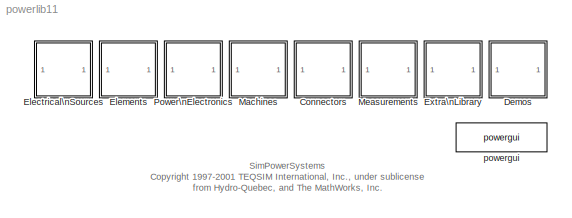
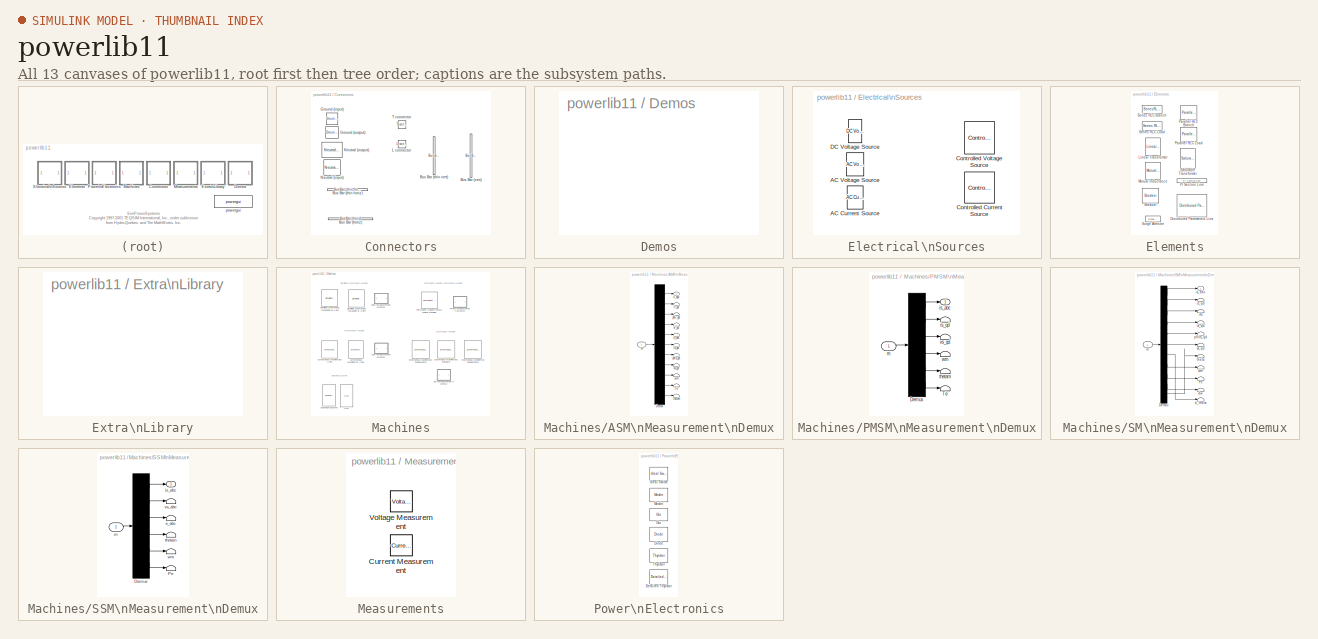
[diagram: thumbnail index - all 13 canvases of the model, root first then tree order]
MODEL powerlib11
KIND library
BLOCK [SubSystem] Connectors
  MaskDisplay = plot(0,0,100,100,[80,40],[40,40],[70,51],[31,31],[64,57],[23,23],[5,60,60],[70,70,40],[32,32],[70,97],[31,32,34,29,29,34,34,29,34,29],[71,68,71,71,70,68,71,68,68,71])
  MaskIconFrame = on
  MaskIconOpaque = on
  MaskIconRotate = none
  MaskIconUnits = autoscale
  MinAlgLoopOccurrences = off
  Ports = []
  RTWSystemCode = Auto
  TreatAsAtomicUnit = off
BLOCK [Reference] Connectors/Bus Bar (horiz)  REF=powerlib2/Connectors/Bus Bar (horiz)
  PSBOutputType = 1111111111111111111111111111111111111111111111111111111111111111111111111
  Ports = [2, 1]
  SourceBlock = powerlib2/Connectors/Bus Bar (horiz)
  SourceType = Bus Bar
  Tag = PoWeRsYsTeMbLoCk
  entrees = 2
  sorties = 1
BLOCK [Reference] Connectors/Bus Bar (thin horiz)  REF=powerlib2/Connectors/Bus Bar (thin horiz)
  PSBOutputType = 111111111111111111111111111111111111111111111111111111111111111111111111111111111111
  Ports = [2, 1]
  SourceBlock = powerlib2/Connectors/Bus Bar (thin horiz)
  SourceType = Bus Bar
  Tag = PoWeRsYsTeMbLoCk
  input = 2
  output = 1
BLOCK [Reference] Connectors/Bus Bar (thin vert)  REF=powerlib2/Connectors/Bus Bar (thin vert)
  PSBOutputType = 111111111111111111111111111111111111111111111111111111111111111111111111111111111111
  Ports = [2, 1]
  SourceBlock = powerlib2/Connectors/Bus Bar (thin vert)
  SourceType = Bus Bar
  Tag = PoWeRsYsTeMbLoCk
  input = 2
  output = 1
BLOCK [Reference] Connectors/Bus Bar (vert)  REF=powerlib2/Connectors/Bus Bar (vert)
  PSBOutputType = 11111111111111111111111111111111111111111111111111111111111111111111111111111111111111111
  Ports = [3, 2]
  SourceBlock = powerlib2/Connectors/Bus Bar (vert)
  SourceType = Bus Bar
  Tag = PoWeRsYsTeMbLoCk
  entrees = 3
  sorties = 2
BLOCK [Reference] Connectors/Ground (input)  REF=powerlib2/Connectors/Ground (input)
  Ports = [1]
  SourceBlock = powerlib2/Connectors/Ground (input)
  SourceType = Ground
  Tag = PoWeRsYsTeMbLoCk
BLOCK [Reference] Connectors/Ground (output)  REF=powerlib2/Connectors/Ground (output)
  PSBOutputType = 1
  Ports = [0, 1]
  SourceBlock = powerlib2/Connectors/Ground (output)
  SourceType = Ground
  Tag = PoWeRsYsTeMbLoCk
BLOCK [Reference] Connectors/L connector  REF=powerlib2/Connectors/L connector
  Ports = [1, 0, 1]
  SourceBlock = powerlib2/Connectors/L connector
  SourceType = Bus Bar
  Tag = PoWeRsYsTeMbLoCk
BLOCK [Reference] Connectors/Neutral (input)  REF=powerlib2/Connectors/Neutral (input)
  Ports = [1]
  SourceBlock = powerlib2/Connectors/Neutral (input)
  SourceType = Neutral
  Tag = PoWeRsYsTeMbLoCk
  no = 99
BLOCK [Reference] Connectors/Neutral (output)  REF=powerlib2/Connectors/Neutral (output)
  PSBOutputType = 1
  Ports = [0, 1]
  SourceBlock = powerlib2/Connectors/Neutral (output)
  SourceType = Neutral
  Tag = PoWeRsYsTeMbLoCk
  no = 99
BLOCK [Reference] Connectors/T connector  REF=powerlib2/Connectors/T connector
  PSBOutputType = 1
  Ports = [1, 1, 1]
  SourceBlock = powerlib2/Connectors/T connector
  SourceType = Bus Bar
  Tag = PoWeRsYsTeMbLoCk
BLOCK [SubSystem] Demos
  MaskDisplay = disp('Demos')
  MaskIconFrame = on
  MaskIconOpaque = on
  MaskIconRotate = none
  MaskIconUnits = autoscale
  MinAlgLoopOccurrences = off
  OpenFcn = demo('simulink','SimPowerSystems')
  Ports = []
  RTWSystemCode = Auto
  TreatAsAtomicUnit = off
BLOCK [SubSystem] Electrical\nSources
  MaskDisplay = plot(-15,-15,15,15,[0 0 5 -5],[10 1.25 1.25 1.25],[0 0 -2 2],[-10 -1.25 -1.25 -1.25],[6 4 5 5 5]-10,[3 3 3 4 2]+3)
  MaskIconFrame = on
  MaskIconOpaque = on
  MaskIconRotate = port
  MaskIconUnits = autoscale
  MinAlgLoopOccurrences = off
  Ports = []
  RTWSystemCode = Auto
  TreatAsAtomicUnit = off
BLOCK [Reference] Electrical\nSources/AC Current Source  REF=powerlib2/Electrical\nSources/AC Current Source
  A = 10
  Description = source block
  F = 60
  P = 0
  PSBOutputType = 1
  Ports = [1, 1]
  SourceBlock = powerlib2/Electrical\nSources/AC Current Source
  SourceType = AC Current Source
  Tag = PoWeRsYsTeMbLoCk
  mesure = None
  stime = 0
BLOCK [Reference] Electrical\nSources/AC Voltage Source  REF=powerlib2/Electrical\nSources/AC Voltage Source
  A = 100
  Description = source block
  F = 60
  P = 0
  PSBOutputType = 1
  Ports = [1, 1]
  SourceBlock = powerlib2/Electrical\nSources/AC Voltage Source
  SourceType = AC Voltage Source
  Tag = PoWeRsYsTeMbLoCk
  mesure = None
  stime = 0
BLOCK [Reference] Electrical\nSources/Controlled Current Source  REF=powerlib2/Electrical\nSources/Controlled Current Source
  Description = source block
  PSBOutputType = 11
  Ports = [1, 2]
  SourceBlock = powerlib2/Electrical\nSources/Controlled Current Source
  SourceType = Controlled Current Source
  Tag = PoWeRsYsTeMbLoCk
  freq = 0
  ia = 10
  initsrc = on
  iph = 0
  mesure = None
  srctyp = AC
BLOCK [Reference] Electrical\nSources/Controlled Voltage Source  REF=powerlib2/Electrical\nSources/Controlled Voltage Source
  Description = source block
  PSBOutputType = 11
  Ports = [1, 2]
  SourceBlock = powerlib2/Electrical\nSources/Controlled Voltage Source
  SourceType = Controlled Voltage Source
  Tag = PoWeRsYsTeMbLoCk
  ifreq = 0
  initsrc = on
  iph = 0
  iv = 100
  mesure = None
  srctyp = AC
BLOCK [Reference] Electrical\nSources/DC Voltage Source  REF=powerlib2/Electrical\nSources/DC Voltage Source
  Description = source block
  PSBOutputType = 1
  Ports = [1, 1]
  SourceBlock = powerlib2/Electrical\nSources/DC Voltage Source
  SourceType = DC Voltage Source
  Tag = PoWeRsYsTeMbLoCk
  V = 100
  mesure = None
BLOCK [SubSystem] Elements
  MaskDisplay = plot(0,0,100,100,[90,64,77,77,60,56,51,46,40,34,30,25,13],[57,57,57,80,80,65,94,65,94,65,94,80,80],[90,87,82,77,74,68,64],[43,46,48,48,48,46,43],[48,77,77],[20,20,48],[39,27,13],[36,20,20])
  MaskIconFrame = on
  MaskIconOpaque = on
  MaskIconRotate = none
  MaskIconUnits = autoscale
  MinAlgLoopOccurrences = off
  Ports = []
  RTWSystemCode = Auto
  TreatAsAtomicUnit = off
BLOCK [Reference] Elements/Breaker  REF=powerlib2/Elements/Breaker
  PSBOutputType = 1
  Ports = [2, 1]
  SourceBlock = powerlib2/Elements/Breaker
  SourceType = Breaker
  Tag = PoWeRsYsTeMbLoCk
  Ts = 0
  a = 0.01
  c = 0
  comext = on
  cs = 0
  mesure = None
  rs = inf
  times = [ 4/60  5/60 ]
BLOCK [Reference] Elements/Distributed Parameters Line  REF=powerlib2/Elements/Distributed Parameters Line
  PSBOutputType = 111111111111111111111111111111
  Ports = [3, 3]
  SourceBlock = powerlib2/Elements/Distributed Parameters Line
  SourceType = Distributed Parameters Line
  Tag = PoWeRsYsTeMbLoCk
  c = [12.74e-9 7.751e-9]
  f = 60
  l = [0.9337e-3  4.1264e-3]
  lgt = 300
  mesure = None
  n = 3
  r = [0.01273 0.3864]
  x1 = [0 0 0 0; 0.0001244 0 0 0; 0.0002488 0 0 0; 0.0003733 0 0 0; 0.0004977 0 0 0; 0.0006221 0 0 0]
  x2 = [0 0 0 0; 0.0001244 0 0 0; 0.0002488 0 0 0; 0.0003733 0 0 0; 0.0004977 0 0 0; 0.0006221 0 0 0]
  x3 = [0 0 0 0; 0.0001244 0 0 0; 0.0002488 0 0 0; 0.0003733 0 0 0; 0.0004977 0 0 0; 0.0006221 0 0 0]
  x4 = [0 0 0 0; 0.0001244 0 0 0; 0.0002488 0 0 0; 0.0003733 0 0 0; 0.0004977 0 0 0; 0.0006221 0 0 0]
  x5 = 0
BLOCK [Reference] Elements/Linear Transformer  REF=powerlib2/Elements/Linear Transformer
  PSBOutputType = 1111
  Ports = [2, 4]
  SourceBlock = powerlib2/Elements/Linear Transformer
  SourceType = Linear Transformer
  Tag = PoWeRsYsTeMbLoCk
  a = [250e6 60]
  b = [735e3/sqrt(3) 0.002 0.08]
  c = [315e3/sqrt(3) 0.002 0.08]
  d = [60e3 0.005 0.02]
  e = [500 500]
  mesure = None
BLOCK [Reference] Elements/Mutual Inductance  REF=powerlib2/Elements/Mutual Inductance
  PSBOutputType = 111
  Ports = [3, 3]
  SourceBlock = powerlib2/Elements/Mutual Inductance
  SourceType = Mutual Inductance
  Tag = PoWeRsYsTeMbLoCk
  a = [1.1 1.1e-03]
  b = [ 1.1 1.1e-03]
  c = [ 1.1 1.1e-03]
  d = [1.0 1.0e-03]
  mesure = None
BLOCK [Reference] Elements/PI Section Line  REF=powerlib2/Elements/PI Section Line
  PSBOutputType = 1
  Ports = [1, 1]
  SourceBlock = powerlib2/Elements/PI Section Line
  SourceType = Pi Section Line
  Tag = PoWeRsYsTeMbLoCk
  a = 0.2568
  b = 2e-03
  c = 8.6e-09
  d = 100
  e = 1
  f = 60
  mesure = None
BLOCK [Reference] Elements/Parallel RLC Branch  REF=powerlib2/Elements/Parallel RLC Branch
  PSBOutputType = 1
  Ports = [1, 1]
  SourceBlock = powerlib2/Elements/Parallel RLC Branch
  SourceType = Parallel RLC Branch
  Tag = PoWeRsYsTeMbLoCk
  a = 1
  b = 1e-03
  c = 1e-06
  mesure = None
BLOCK [Reference] Elements/Parallel RLC Load  REF=powerlib2/Elements/Parallel RLC Load
  PSBOutputType = 1
  Ports = [1, 1]
  SourceBlock = powerlib2/Elements/Parallel RLC Load
  SourceType = Parallel RLC Load
  Tag = PoWeRsYsTeMbLoCk
  a = 1000
  b = 60
  c = 10e3
  d = 100
  e = 100
  mesure = None
BLOCK [Reference] Elements/Saturable Transformer  REF=powerlib2/Elements/Saturable Transformer
  H = off
  Initialslope = +1
  PSBOutputType = 1111
  Ports = [2, 4]
  SourceBlock = powerlib2/Elements/Saturable Transformer
  SourceType = Saturable Transformer
  Tag = PoWeRsYsTeMbLoCk
  a = [250e6 60]
  b = [735e3/sqrt(3) 0.002 0.08]
  c = [315e3/sqrt(3) 0.002 0.08]
  d = [315e3/sqrt(3) 0.002 0.08]
  e = [0 0 ; 0.001 1.2 ; 1 1.3]
  f = [500]
  matfile = 'hystXfo1'
  mesure = None
BLOCK [Reference] Elements/Series RLC Branch  REF=powerlib2/Elements/Series RLC Branch
  PSBOutputType = 1
  Ports = [1, 1]
  SourceBlock = powerlib2/Elements/Series RLC Branch
  SourceType = Series RLC Branch
  Tag = PoWeRsYsTeMbLoCk
  a = 1
  b = 1e-03
  c = 1e-06
  mesure = None
BLOCK [Reference] Elements/Series RLC Load  REF=powerlib2/Elements/Series RLC Load
  PSBOutputType = 1
  Ports = [1, 1]
  SourceBlock = powerlib2/Elements/Series RLC Load
  SourceType = Series RLC Load
  Tag = PoWeRsYsTeMbLoCk
  a = 1000
  b = 60
  c = 10e3
  d = 100
  e = 100
  mesure = None
BLOCK [Reference] Elements/Surge Arrester  REF=powerlib2/Elements/Surge Arrester
  PSBOutputType = 1
  Ports = [1, 1]
  SourceBlock = powerlib2/Elements/Surge Arrester
  SourceType = Surge Arrester
  Tag = PoWeRsYsTeMbLoCk
  mesure = None
  x1 = 500e+03
  x2 = 2
  x3 = 500
  x4 = [.955 50]
  x5 = [1.0 25]
  x6 = [.9915 16.5]
BLOCK [SubSystem] Extra\nLibrary
  MaskDisplay = disp('Extras')
  MaskIconFrame = on
  MaskIconOpaque = on
  MaskIconRotate = none
  MaskIconUnits = autoscale
  MinAlgLoopOccurrences = off
  OpenFcn = powerlib_extras
  Ports = []
  RTWSystemCode = Auto
  TreatAsAtomicUnit = off
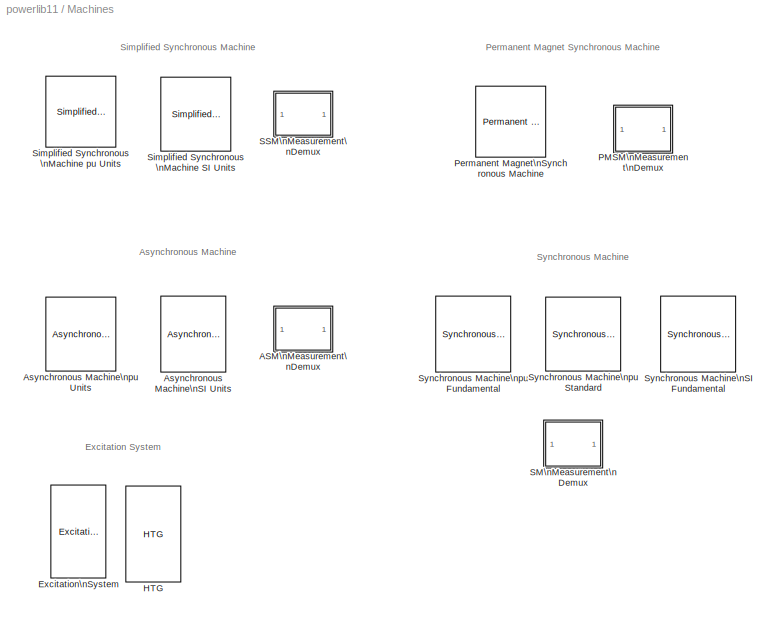
BLOCK [SubSystem] Machines
  MaskDisplay = plot(-40,-40,40,40,[0,9,18,24,29,30,29,24,18,9,0,-9,-18,-24,-29,-30,-29,-24,-18,-9,0],[30,29,24,18,9,0,-9,-18,-24,-29,-30,-29,-24,-18,-9,0,9,18,24,29,30],[0,-9,-18,-24,-16,-16,-24,-18,-9,0,9,18,24,16,16,24,18,9,0]*.8,[-30,-29,-24,-18,-18,18,18,24,29,30,29,24,18,18,-18,-18,-24,-29,-30]*.8)
  MaskIconFrame = on
  MaskIconOpaque = on
  MaskIconRotate = none
  MaskIconUnits = autoscale
  MinAlgLoopOccurrences = off
  Ports = []
  RTWSystemCode = Auto
  TreatAsAtomicUnit = off
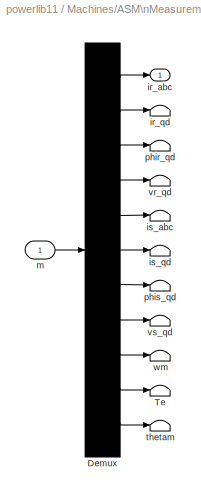
BLOCK [SubSystem] Machines/ASM\nMeasurement\nDemux
  MaskCallbackString = ||||||||||
  MaskDescription = Split specified signals of Asynchronous Machine measurement output vector into separate signals. All electrical rotor quantities are referred to the stator.
  MaskEnableString = on,on,on,on,on,on,on,on,on,on,on
  MaskIconFrame = on
  MaskIconOpaque = on
  MaskIconRotate = none
  MaskIconUnits = autoscale
  MaskInitialization = bloc=gcb;\nif strcmp(bdroot,'powerlib');return;end;\nnames={'ir_abc','ir_qd','phir_qd','vr_qd','is_abc','is_qd','phis_qd','vs_qd','wm','Te','thetam'};\netats={a,b,c,d,e,f,g,h,i,j,k};\nOutNo = 0;\nfor i=1:11\n   if etats{i}==0\n      status='Terminator';\n   else\n      status='Outport';\n	  OutNo = OutNo+1;\n   end\n   actuel=get_param([bloc,'/',names{i}],'BlockType');\n   if strcmp(actuel,status)...<+187ch>
  MaskPromptString = ir_abc       : Rotor currents ira, irb, irc (A) or (pu)|ir_qd         : q and d axis rotor currents (A) or (pu)|phir_qd    : q and d axis rotor fluxes (Wb) or (pu)|vr_qd        : q and d axis rotor voltages (V) or (pu)|is_abc      : Stator currents ia, ib, ic (A) or (pu)|is_qd        : q and d axis stator currents (A) or (pu)|phis_qd   : q and d axis stator fluxes (Wb) or (pu)|vs_qd       : q and ...<+165ch>
  MaskSelfModifiable = on
  MaskStyleString = checkbox,checkbox,checkbox,checkbox,checkbox,checkbox,checkbox,checkbox,checkbox,checkbox,checkbox
  MaskTabNameString = ,,,,,,,,,,
  MaskToolTipString = on,on,on,on,on,on,on,on,on,on,on
  MaskTunableValueString = on,on,on,on,on,on,on,on,on,on,on
  MaskType = Asynchronous Machine measurements
  MaskValueString = on|off|off|off|off|off|off|off|off|off|off
  MaskVarAliasString = ,,,,,,,,,,
  MaskVariables = a=@1;b=@2;c=@3;d=@4;e=@5;f=@6;g=@7;h=@8;i=@9;j=@10;k=@11;
  MaskVisibilityString = on,on,on,on,on,on,on,on,on,on,on
  MinAlgLoopOccurrences = off
  Ports = [1, 1]
  RTWSystemCode = Auto
  TreatAsAtomicUnit = off
BLOCK [Demux] Machines/ASM\nMeasurement\nDemux/Demux
  Outputs = [3,2,2,2,3,2,2,2,1,1,1]
  Ports = [1, 11]
BLOCK [Terminator] Machines/ASM\nMeasurement\nDemux/Te
BLOCK [Outport] Machines/ASM\nMeasurement\nDemux/ir_abc
  IconDisplay = Port number
BLOCK [Terminator] Machines/ASM\nMeasurement\nDemux/ir_qd
BLOCK [Terminator] Machines/ASM\nMeasurement\nDemux/is_abc
BLOCK [Terminator] Machines/ASM\nMeasurement\nDemux/is_qd
BLOCK [Inport] Machines/ASM\nMeasurement\nDemux/m
  IconDisplay = Port number
  LatchInput = off
  Port = 1
BLOCK [Terminator] Machines/ASM\nMeasurement\nDemux/phir_qd
BLOCK [Terminator] Machines/ASM\nMeasurement\nDemux/phis_qd
BLOCK [Terminator] Machines/ASM\nMeasurement\nDemux/thetam
BLOCK [Terminator] Machines/ASM\nMeasurement\nDemux/vr_qd
BLOCK [Terminator] Machines/ASM\nMeasurement\nDemux/vs_qd
BLOCK [Terminator] Machines/ASM\nMeasurement\nDemux/wm
BLOCK [Reference] Machines/Asynchronous Machine\nSI Units  REF=powerlib2/Machines/Asynchronous Machine\nSI Units
  PSBOutputType = 1110
  Ports = [4, 4]
  SourceBlock = powerlib2/Machines/Asynchronous Machine\nSI Units
  SourceType = Asynchronous Machine
  Tag = PoWeRsYsTeMbLoCk
  ctrl = Rotor
  iounits = 1
  rotType = Wound
  x1 = [ 3*746, 220, 60 ]
  x2 = [ 0.435  2.0e-3 ]
  x3 = [ 0.816  2.0e-3 ]
  x4 = 69.31e-3
  x5 = [ 0.089  0  2 ]
  x6 = [ 1,0   0,0,0   0,0,0 ]
BLOCK [Reference] Machines/Asynchronous Machine\npu Units  REF=powerlib2/Machines/Asynchronous Machine\npu Units
  PSBOutputType = 1110
  Ports = [4, 4]
  SourceBlock = powerlib2/Machines/Asynchronous Machine\npu Units
  SourceType = Asynchronous Machine
  Tag = PoWeRsYsTeMbLoCk
  ctrl = Rotor
  iounits = 0
  rotType = Wound
  x1 = [ 3*746, 220, 60 ]
  x2 = [ 0.0201,0.0349 ]
  x3 = [ 0.0377,0.0349 ]
  x4 = 1.2082
  x5 = [ 0.7065,0,2 ]
  x6 = [ 1,0   0,0,0   0,0,0 ]
BLOCK [Reference] Machines/Excitation\nSystem  REF=powerlib2/Machines/Excitation\nSystem
  Ports = [4, 1]
  SourceBlock = powerlib2/Machines/Excitation\nSystem
  SourceType = Excitation System
  damp = [ 0.001, 0.1 ]
  exc = [ 1, 0 ]
  lim = [ -11.5, 11.5, 0 ]
  reg = [ 300, 0.001 ]
  sat = [ 0, 0 ]
  tgr = [ 0, 0 ]
  tr = 20e-3
  v0 = [1.0  1.28]
BLOCK [Reference] Machines/HTG  REF=powerlib2/Machines/HTG
  Ports = [5, 2]
  SourceBlock = powerlib2/Machines/HTG
  SourceType = Hydraulic Turbine and Governor
  dref = 0
  gate = [  0.01  0.97518  -0.1  0.1 ]
  hyd = [  0  2.67  ]
  po = 0.7516
  reg = [  0.05  1.163  0.105  0  0.01  ]
  sm = [ 10/3  0.07 ]
BLOCK [SubSystem] Machines/PMSM\nMeasurement\nDemux
  MaskCallbackString = |||||
  MaskDescription = Split specified signals of Permanent Magnet Synchronous Machine measurement output vector into separate signals.
  MaskEnableString = on,on,on,on,on,on
  MaskIconFrame = on
  MaskIconOpaque = on
  MaskIconRotate = none
  MaskIconUnits = autoscale
  MaskInitialization = bloc=gcb;\nif strcmp(bdroot,'powerlib');return;end\nnames={'is_abc','is_qd','vs_qd','wm','thetam','Te'};\netats={a,b,c,d,e,f};\nOutNo = 0;\nfor i=1:6\n   if etats{i}==0\n      status='Terminator';\n   else\n      status='Outport';\n	  OutNo = OutNo+1;\n   end\n   actuel=get_param([bloc,'/',names{i}],'BlockType');\n   if strcmp(actuel,status)==0\n      replace_block(bloc,'FollowLinks','on','Name',n...<+128ch>
  MaskPromptString = is_abc  : Stator line currents ia, ib, ic (A)|is_qd    : q and d axis stator currents (A)|vs_qd   : q and d axis stator voltages (V)|wm        : Rotor speed (rad/s)|thetam  : Rotor angle (rad)|Te          : Electromagnetic torque (N.m)
  MaskSelfModifiable = on
  MaskStyleString = checkbox,checkbox,checkbox,checkbox,checkbox,checkbox
  MaskTabNameString = ,,,,,
  MaskToolTipString = on,on,on,on,on,on
  MaskTunableValueString = on,on,on,on,on,on
  MaskType = Permanent Magnet Synchronous Machine measurements
  MaskValueString = on|off|off|off|off|off
  MaskVarAliasString = ,,,,,
  MaskVariables = a=@1;b=@2;c=@3;d=@4;e=@5;f=@6;
  MaskVisibilityString = on,on,on,on,on,on
  MinAlgLoopOccurrences = off
  Ports = [1, 1]
  RTWSystemCode = Auto
  TreatAsAtomicUnit = off
BLOCK [Demux] Machines/PMSM\nMeasurement\nDemux/Demux
  Outputs = [3,2,2,1,1,1]
  Ports = [1, 6]
BLOCK [Terminator] Machines/PMSM\nMeasurement\nDemux/Te
BLOCK [Outport] Machines/PMSM\nMeasurement\nDemux/is_abc
  IconDisplay = Port number
BLOCK [Terminator] Machines/PMSM\nMeasurement\nDemux/is_qd
BLOCK [Inport] Machines/PMSM\nMeasurement\nDemux/m
  IconDisplay = Port number
  LatchInput = off
  Port = 1
BLOCK [Terminator] Machines/PMSM\nMeasurement\nDemux/thetam
BLOCK [Terminator] Machines/PMSM\nMeasurement\nDemux/vs_qd
BLOCK [Terminator] Machines/PMSM\nMeasurement\nDemux/wm
BLOCK [Reference] Machines/Permanent Magnet\nSynchronous Machine  REF=powerlib2/Machines/Permanent Magnet\nSynchronous Machine
  PSBOutputType = 0
  Ports = [4, 1]
  SourceBlock = powerlib2/Machines/Permanent Magnet\nSynchronous Machine
  SourceType = PM Synchronous Machine
  Tag = PoWeRsYsTeMbLoCk
  x1 = 2.875
  x2 = [8.5e-3, 8.5e-3]
  x3 = 0.175
  x4 = [ 0.8e-3, 0,  4 ]
BLOCK [SubSystem] Machines/SM\nMeasurement\nDemux
  MaskCallbackString = |||||||||
  MaskDescription = Split specified signals of Synchronous Machine measurement output vector into separate signals. Damper winding currents are referred to the stator.
  MaskEnableString = on,on,on,on,on,on,on,on,on,on
  MaskIconFrame = on
  MaskIconOpaque = off
  MaskIconRotate = none
  MaskIconUnits = autoscale
  MaskInitialization = bloc=gcb;\nif strcmp(bdroot,'powerlib');return;end;\nnames={'is_abc','is_qd','ifd','ik_qd','phim_qd','vs_qd','theta','wm','Pe','dw'};\netats={a,b,c,d,e,f,g,h,i,j};\nOutNo = 0;\nfor i=1:10\n   if etats{i}==0\n      status='Terminator';\n   else\n      status='Outport';\n      OutNo = OutNo+1;\n   end\n   actuel=get_param([bloc,'/',names{i}],'BlockType');\n   if strcmp(actuel,status)==0\n	   replace...<+172ch>
  MaskPromptString = is_abc      : Stator currents isa, isb, isc (A) or (pu)|is_qd        : q and d axis stator currents (A) or (pu)|ifd              : Field current (A) or (pu)|ik_qd        : Damper winding currents ikq1, ikq2, ikd (A) or (pu)|phim_qd  : q and d axis mutual fluxes|vs_qd       : q and d axis stator voltages (V) or (pu)|theta        : Rotor mechanical angle (deg)|wm            : Rotor speed (rad/s) or ...<+94ch>
  MaskSelfModifiable = on
  MaskStyleString = checkbox,checkbox,checkbox,checkbox,checkbox,checkbox,checkbox,checkbox,checkbox,checkbox
  MaskTabNameString = ,,,,,,,,,
  MaskToolTipString = on,on,on,on,on,on,on,on,on,on
  MaskTunableValueString = on,on,on,on,on,on,on,on,on,on
  MaskType = Synchronous Machine measurements
  MaskValueString = on|off|off|off|off|off|off|off|off|off
  MaskVarAliasString = ,,,,,,,,,
  MaskVariables = a=@1;b=@2;c=@3;d=@4;e=@5;f=@6;g=@7;h=@8;i=@9;j=@10;
  MaskVisibilityString = on,on,on,on,on,on,on,on,on,on
  MinAlgLoopOccurrences = off
  Ports = [1, 1]
  RTWSystemCode = Auto
  TreatAsAtomicUnit = off
BLOCK [Demux] Machines/SM\nMeasurement\nDemux/Demux
  Outputs = [3,2,1,3,2,2,1,1,1,1,1]
  Ports = [1, 11]
BLOCK [Terminator] Machines/SM\nMeasurement\nDemux/Pe
BLOCK [Terminator] Machines/SM\nMeasurement\nDemux/d_theta
BLOCK [Terminator] Machines/SM\nMeasurement\nDemux/dw
BLOCK [Terminator] Machines/SM\nMeasurement\nDemux/ifd
BLOCK [Terminator] Machines/SM\nMeasurement\nDemux/ik_qd
BLOCK [Outport] Machines/SM\nMeasurement\nDemux/is_abc
  IconDisplay = Port number
BLOCK [Terminator] Machines/SM\nMeasurement\nDemux/is_qd
BLOCK [Inport] Machines/SM\nMeasurement\nDemux/m
  IconDisplay = Port number
  LatchInput = off
  Port = 1
BLOCK [Terminator] Machines/SM\nMeasurement\nDemux/phim_qd
BLOCK [Terminator] Machines/SM\nMeasurement\nDemux/theta
BLOCK [Terminator] Machines/SM\nMeasurement\nDemux/vs_qd
BLOCK [Terminator] Machines/SM\nMeasurement\nDemux/wm
BLOCK [SubSystem] Machines/SSM\nMeasurement\nDemux
  MaskCallbackString = |||||
  MaskDescription = Split specified signals of Simplified Synchronous Machine measurement output vector into separate signals.
  MaskEnableString = on,on,on,on,on,on
  MaskIconFrame = on
  MaskIconOpaque = off
  MaskIconRotate = none
  MaskIconUnits = autoscale
  MaskInitialization = bloc=gcb;\nif strcmp(bdroot,'powerlib');return;end\nnames={'is_abc','vs_abc','e_abc','thetam','wm','Pe'};\netats={a,b,c,d,e,f};\nOutNo = 0;\nfor i=1:6\n   if etats{i}==0\n      status='Terminator';\n   else\n      status='Outport';\n	  OutNo = OutNo+1;\n   end\n   actuel=get_param([bloc,'/',names{i}],'BlockType');\n   if strcmp(actuel,status)==0\n      replace_block(bloc,'FollowLinks','on','Name',...<+131ch>
  MaskPromptString = is_abc  : Line currents ia, ib, ic (A) or (pu)|vs_abc : Terminal voltages va, vb, vc (V) or (pu)|e_abc   : Internal voltages ea, eb, ec (V) or (pu)|thetam  : Rotor angle (rad)|wm        : Rotor speed (rad/s) or (pu)|Pe         : Electrical power (W)  or  (pu)
  MaskSelfModifiable = on
  MaskStyleString = checkbox,checkbox,checkbox,checkbox,checkbox,checkbox
  MaskTabNameString = ,,,,,
  MaskToolTipString = on,on,on,on,on,on
  MaskTunableValueString = on,on,on,on,on,on
  MaskType = Simplified Synchronous Machine measurements
  MaskValueString = on|off|off|off|off|off
  MaskVarAliasString = ,,,,,
  MaskVariables = a=@1;b=@2;c=@3;d=@4;e=@5;f=@6;
  MaskVisibilityString = on,on,on,on,on,on
  MinAlgLoopOccurrences = off
  Ports = [1, 1]
  RTWSystemCode = Auto
  TreatAsAtomicUnit = off
BLOCK [Demux] Machines/SSM\nMeasurement\nDemux/Demux
  Outputs = [3,3,3,1,1,1]
  Ports = [1, 6]
BLOCK [Terminator] Machines/SSM\nMeasurement\nDemux/Pe
BLOCK [Terminator] Machines/SSM\nMeasurement\nDemux/e_abc
BLOCK [Outport] Machines/SSM\nMeasurement\nDemux/is_abc
  IconDisplay = Port number
BLOCK [Inport] Machines/SSM\nMeasurement\nDemux/m
  IconDisplay = Port number
  LatchInput = off
  Port = 1
BLOCK [Terminator] Machines/SSM\nMeasurement\nDemux/thetam
BLOCK [Terminator] Machines/SSM\nMeasurement\nDemux/vs_abc
BLOCK [Terminator] Machines/SSM\nMeasurement\nDemux/wm
BLOCK [Reference] Machines/Simplified Synchronous \nMachine  pu Units  REF=powerlib2/Machines/Simplified Synchronous \nMachine  pu Units
  PSBOutputType = 1110
  Ports = [2, 4]
  SourceBlock = powerlib2/Machines/Simplified Synchronous \nMachine  pu Units
  SourceType = Simplified Synchronous Machine
  Tag = PoWeRsYsTeMbLoCk
  conType = 3-wire Y
  iounits = 0
  x1 = [ 1000e6,315e3,60 ]
  x2 = [ inf,0,2 ]
  x3 = [ 0.02,1 ]
  x4 = [ 0   0   0,0,0   0,0,0 ]
BLOCK [Reference] Machines/Simplified Synchronous \nMachine SI Units  REF=powerlib2/Machines/Simplified Synchronous \nMachine SI Units
  PSBOutputType = 1110
  Ports = [2, 4]
  SourceBlock = powerlib2/Machines/Simplified Synchronous \nMachine SI Units
  SourceType = Simplified Synchronous Machine
  Tag = PoWeRsYsTeMbLoCk
  conType = 3-wire Y
  iounits = 1
  x1 = [ 1000e6,315e3,60 ]
  x2 = [ inf,0,2 ]
  x3 = [ 1.9845,263.15e-3 ]
  x4 = [ 0   0   0,0,0   0,0,0 ]
BLOCK [Reference] Machines/Synchronous Machine\nSI Fundamental  REF=powerlib2/Machines/Synchronous Machine\nSI Fundamental
  PSBOutputType = 1110
  Ports = [2, 4]
  SourceBlock = powerlib2/Machines/Synchronous Machine\nSI Fundamental
  SourceType = Synchronous Machine
  Tag = PoWeRsYsTeMbLoCk
  iounits = 1
  rotorType = Salient-pole
  x1 = [ 187E6  13800   60   1087 ]
  x2 = [ 2.9069E-03  3.0892E-04  3.2164E-03  9.7153E-04 ]
  x3 = [ 5.9013E-04  3.0712E-04 ]
  x4 = [ 1.1900E-02  4.9076E-04  2.0081E-02  1.0365E-03 ]
  x4b = [ 0.0664, 1.387e-3, 0.0292, 6.896e-4, 7.907e-3, 2.477e-3]
  x5 = [ inf  0  20 ]
  x6 = [ 0  0  0  0  0  0  0  0  70.3192 ]
  x7 = off
  x8 = [695.64,774.7,917.5,1001.6,1082.2,1175.9,1293.6,1430.2,1583.7;9660,10623,12243,13063,13757,14437,15180,15890,16567]
  x9 = off
BLOCK [Reference] Machines/Synchronous Machine\npu Fundamental  REF=powerlib2/Machines/Synchronous Machine\npu Fundamental
  PSBOutputType = 1110
  Ports = [2, 4]
  SourceBlock = powerlib2/Machines/Synchronous Machine\npu Fundamental
  SourceType = Synchronous Machine
  Tag = PoWeRsYsTeMbLoCk
  iounits = 0
  rotorType = Salient-pole
  x1 = [ 187E6  13800   60 ]
  x2 = [ 2.8544E-03  0.11436  1.1906  0.35964 ]
  x3 = [ 5.7947E-04  0.11369 ]
  x4 = [ 1.1685E-02  0.18167  1.9718E-02  038371 ]
  x4b = [0.0652, 0.5134, 0.0287, 0.2553, 7.765e-3, 0.9167 ]
  x5 = [ inf  0  20 ]
  x6 = [ 0  0  0  0  0  0  0  0  1 ]
  x7 = off
  x8 = [0.6404,0.7127,0.8441,0.9214,0.9956,1.082,1.19,1.316,1.457;0.7,0.7698,0.8872,0.9466,0.9969,1.046,1.1,1.151,1.201]
BLOCK [Reference] Machines/Synchronous Machine\npu Standard  REF=powerlib2/Machines/Synchronous Machine\npu Standard
  PSBOutputType = 1110
  Ports = [2, 4]
  SourceBlock = powerlib2/Machines/Synchronous Machine\npu Standard
  SourceType = Synchronous Machine
  Tag = PoWeRsYsTeMbLoCk
  dAxisT = Open-circuit
  iounits = 0.5
  qAxisT = Short-circuit
  rotorType = Salient-pole
  x1 = [ 187E6  13800   60 ]
  x2 = [ 1.305, 0.296, 0.252, 0.474, 0.243, 0.18 ]
  x2b = [ 1.81, 0.3, 0.23, 1.76, 0.65, 0.25, 0.15 ]
  x3 = [ 1.01, 0.053, 0.1 ]
  x3a = [ 4.4849  0.0681  0.1  ]
  x3b = [ 8.0, 0.03, 1.0, 0.07 ]
  x3c = [  4.4849  0.0681  0.051266  ]
  x3d = [ 8.0, 0.03, 0.3371, 0.0295 ]
  x3e = [ 1.3201, 0.023, 1.0, 0.07 ]
  x3f = [  1.01  0.053  0.051266  ]
  x3g = [ 1.3201, 0.0231, 0.3371, 0.0295 ]
  x4 = 0.003
  x5 = [ inf  0  20 ]
  x6 = [ 0  0  0  0  0  0  0  0  1 ]
  x7 = off
  x8 = [0.6404,0.7127,0.8441,0.9214,0.9956,1.082,1.19,1.316,1.457;0.7,0.7698,0.8872,0.9466,0.9969,1.046,1.1,1.151,1.201]
BLOCK [SubSystem] Measurements
  InitFcn = tag=strrep(tempname,tempdir,'');set_param(gcb,'VariableName',tag);
  MaskDisplay = plot(-40,-40,40,60,[-30,-29,-24,-18,-9,0,9,18,24,29,30,-30],[0,9,18,24,29,30,29,24,18,9,0,0]*1.3,[0,10,3,10,12],[0,30,25,30,22])
  MaskIconFrame = on
  MaskIconOpaque = on
  MaskIconRotate = none
  MaskIconUnits = autoscale
  MinAlgLoopOccurrences = off
  Ports = []
  RTWSystemCode = Auto
  TreatAsAtomicUnit = off
BLOCK [Reference] Measurements/Current Measurement  REF=powerlib2/Measurements/Current Measurement
  PSBOutputType = 01
  PSBequivalent = 0
  Ports = [1, 2]
  SourceBlock = powerlib2/Measurements/Current Measurement
  SourceType = Current Measurement
  Tag = PoWeRsYsTeMmEaSuReMeNt
BLOCK [Reference] Measurements/Voltage Measurement  REF=powerlib2/Measurements/Voltage Measurement
  PSBOutputType = 0
  PSBequivalent = 0
  Ports = [2, 1]
  SourceBlock = powerlib2/Measurements/Voltage Measurement
  SourceType = Voltage Measurement
  Tag = PoWeRsYsTeMmEaSuReMeNt
BLOCK [SubSystem] Power\nElectronics
  MaskDisplay = plot(0,0,100,100,[50,30,70,50,30,70,50,50],[60,30,30,60,60,60,60,80],[50,50],[20,30],[30,41,44],[71,71,60])
  MaskIconFrame = on
  MaskIconOpaque = on
  MaskIconRotate = none
  MaskIconUnits = autoscale
  MinAlgLoopOccurrences = off
  Ports = []
  RTWSystemCode = Auto
  TreatAsAtomicUnit = off
BLOCK [Reference] Power\nElectronics/Detailed Thyristor  REF=powerlib2/Power\nElectronics/Detailed Thyristor
  Cs = 4.7e-6
  IC = 0
  IL = 0.1
  Lon = 0
  PSBOutputType = 10
  Ports = [2, 2]
  Ron = 1e-3
  Rs = 10
  SourceBlock = powerlib2/Power\nElectronics/Detailed Thyristor
  SourceType = Detailed Thyristor
  Tag = PoWeRsYsTeMbLoCk
  Tq = 100e-6
  Vf = 0.8
BLOCK [Reference] Power\nElectronics/Diode  REF=powerlib2/Power\nElectronics/Diode
  Cs = 0.01e-6
  IC = 0
  Lon = 0
  PSBOutputType = 10
  Ports = [1, 2]
  Ron = 0.01
  Rs = 10
  SourceBlock = powerlib2/Power\nElectronics/Diode
  SourceType = Diode
  Tag = PoWeRsYsTeMbLoCk
  Vf = 0.8
BLOCK [Reference] Power\nElectronics/Gto  REF=powerlib2/Power\nElectronics/Gto
  Cs = 0.01e-6
  IC = 0
  Lon = 1e-6
  PSBOutputType = 10
  Ports = [2, 2]
  Ron = 0.01
  Rs = 10
  SourceBlock = powerlib2/Power\nElectronics/Gto
  SourceType = Gto
  Tag = PoWeRsYsTeMbLoCk
  Tf = 10e-6
  Tt = 20e-6
  Vf = 1
BLOCK [Reference] Power\nElectronics/Ideal Switch  REF=powerlib2/Power\nElectronics/Ideal Switch
  Cs = 0.01e-6
  IC = 0
  Lon = 0
  PSBOutputType = 10
  Ports = [2, 2]
  Ron = 0.01
  Rs = 10
  SourceBlock = powerlib2/Power\nElectronics/Ideal Switch
  SourceType = Ideal Switch
  Tag = PoWeRsYsTeMbLoCk
BLOCK [Reference] Power\nElectronics/Mosfet  REF=powerlib2/Power\nElectronics/Mosfet
  Cs = 0.01e-6
  IC = 0
  Lon = 1e-6
  PSBOutputType = 10
  Ports = [2, 2]
  Rd = .001
  Ron = 0.001
  Rs = 10
  SourceBlock = powerlib2/Power\nElectronics/Mosfet
  SourceType = Mosfet
  Tag = PoWeRsYsTeMbLoCk
BLOCK [Reference] Power\nElectronics/Thyristor  REF=powerlib2/Power\nElectronics/Thyristor
  Cs = 4.7e-6
  IC = 0
  Lon = 0
  PSBOutputType = 10
  Ports = [2, 2]
  Ron = 1e-03
  Rs = 10
  SourceBlock = powerlib2/Power\nElectronics/Thyristor
  SourceType = Thyristor
  Tag = PoWeRsYsTeMbLoCk
  Vf = 0.8
BLOCK [Reference] powergui  REF=powerlib2/powergui
  DisplayStyle = off
  Frange = logspace(0,3,50)
  FreqAxis = off
  MaxFrequency = 1000
  Ports = []
  RmsSteady = 1
  SourceBlock = powerlib2/powergui
  SourceType = PSB option menu block
  StartTime = 0.0
  Ts = 0
  Xlog = off
  Ylog = off
  ZoomFFT = on
  cycles = 2
  display = off
  echomessages = off
  frequency = 60
  frequencyindice = 1
  frequencyindicesteady = 1
  fundamental = 60
  methode = off
  save = off
  variable = ZData
ANNOTATION (root): SimPowerSystems\nCopyright 1997-2001 TEQSIM International, Inc., under sublicense\nfrom Hydro-Quebec, and The MathWorks, Inc.
ANNOTATION Machines: Asynchronous Machine
ANNOTATION Machines: Excitation System
ANNOTATION Machines: Permanent Magnet Synchronous Machine
ANNOTATION Machines: Simplified Synchronous Machine
ANNOTATION Machines: Synchronous Machine
LINE Machines/ASM\nMeasurement\nDemux/Demux:1 -> Machines/ASM\nMeasurement\nDemux/ir_abc:1
LINE Machines/ASM\nMeasurement\nDemux/Demux:10 -> Machines/ASM\nMeasurement\nDemux/Te:1
LINE Machines/ASM\nMeasurement\nDemux/Demux:11 -> Machines/ASM\nMeasurement\nDemux/thetam:1
LINE Machines/ASM\nMeasurement\nDemux/Demux:2 -> Machines/ASM\nMeasurement\nDemux/ir_qd:1
LINE Machines/ASM\nMeasurement\nDemux/Demux:3 -> Machines/ASM\nMeasurement\nDemux/phir_qd:1
LINE Machines/ASM\nMeasurement\nDemux/Demux:4 -> Machines/ASM\nMeasurement\nDemux/vr_qd:1
LINE Machines/ASM\nMeasurement\nDemux/Demux:5 -> Machines/ASM\nMeasurement\nDemux/is_abc:1
LINE Machines/ASM\nMeasurement\nDemux/Demux:6 -> Machines/ASM\nMeasurement\nDemux/is_qd:1
LINE Machines/ASM\nMeasurement\nDemux/Demux:7 -> Machines/ASM\nMeasurement\nDemux/phis_qd:1
LINE Machines/ASM\nMeasurement\nDemux/Demux:8 -> Machines/ASM\nMeasurement\nDemux/vs_qd:1
LINE Machines/ASM\nMeasurement\nDemux/Demux:9 -> Machines/ASM\nMeasurement\nDemux/wm:1
LINE Machines/ASM\nMeasurement\nDemux/m:1 -> Machines/ASM\nMeasurement\nDemux/Demux:1
LINE Machines/PMSM\nMeasurement\nDemux/Demux:1 -> Machines/PMSM\nMeasurement\nDemux/is_abc:1
LINE Machines/PMSM\nMeasurement\nDemux/Demux:2 -> Machines/PMSM\nMeasurement\nDemux/is_qd:1
LINE Machines/PMSM\nMeasurement\nDemux/Demux:3 -> Machines/PMSM\nMeasurement\nDemux/vs_qd:1
LINE Machines/PMSM\nMeasurement\nDemux/Demux:4 -> Machines/PMSM\nMeasurement\nDemux/wm:1
LINE Machines/PMSM\nMeasurement\nDemux/Demux:5 -> Machines/PMSM\nMeasurement\nDemux/thetam:1
LINE Machines/PMSM\nMeasurement\nDemux/Demux:6 -> Machines/PMSM\nMeasurement\nDemux/Te:1
LINE Machines/PMSM\nMeasurement\nDemux/m:1 -> Machines/PMSM\nMeasurement\nDemux/Demux:1
LINE Machines/SM\nMeasurement\nDemux/Demux:1 -> Machines/SM\nMeasurement\nDemux/is_abc:1
LINE Machines/SM\nMeasurement\nDemux/Demux:10 -> Machines/SM\nMeasurement\nDemux/dw:1
LINE Machines/SM\nMeasurement\nDemux/Demux:11 -> Machines/SM\nMeasurement\nDemux/theta:1
LINE Machines/SM\nMeasurement\nDemux/Demux:2 -> Machines/SM\nMeasurement\nDemux/is_qd:1
LINE Machines/SM\nMeasurement\nDemux/Demux:3 -> Machines/SM\nMeasurement\nDemux/ifd:1
LINE Machines/SM\nMeasurement\nDemux/Demux:4 -> Machines/SM\nMeasurement\nDemux/ik_qd:1
LINE Machines/SM\nMeasurement\nDemux/Demux:5 -> Machines/SM\nMeasurement\nDemux/phim_qd:1
LINE Machines/SM\nMeasurement\nDemux/Demux:6 -> Machines/SM\nMeasurement\nDemux/vs_qd:1
LINE Machines/SM\nMeasurement\nDemux/Demux:7 -> Machines/SM\nMeasurement\nDemux/d_theta:1
LINE Machines/SM\nMeasurement\nDemux/Demux:8 -> Machines/SM\nMeasurement\nDemux/wm:1
LINE Machines/SM\nMeasurement\nDemux/Demux:9 -> Machines/SM\nMeasurement\nDemux/Pe:1
LINE Machines/SM\nMeasurement\nDemux/m:1 -> Machines/SM\nMeasurement\nDemux/Demux:1
LINE Machines/SSM\nMeasurement\nDemux/Demux:1 -> Machines/SSM\nMeasurement\nDemux/is_abc:1
LINE Machines/SSM\nMeasurement\nDemux/Demux:2 -> Machines/SSM\nMeasurement\nDemux/vs_abc:1
LINE Machines/SSM\nMeasurement\nDemux/Demux:3 -> Machines/SSM\nMeasurement\nDemux/e_abc:1
LINE Machines/SSM\nMeasurement\nDemux/Demux:4 -> Machines/SSM\nMeasurement\nDemux/thetam:1
LINE Machines/SSM\nMeasurement\nDemux/Demux:5 -> Machines/SSM\nMeasurement\nDemux/wm:1
LINE Machines/SSM\nMeasurement\nDemux/Demux:6 -> Machines/SSM\nMeasurement\nDemux/Pe:1
LINE Machines/SSM\nMeasurement\nDemux/m:1 -> Machines/SSM\nMeasurement\nDemux/Demux:1
